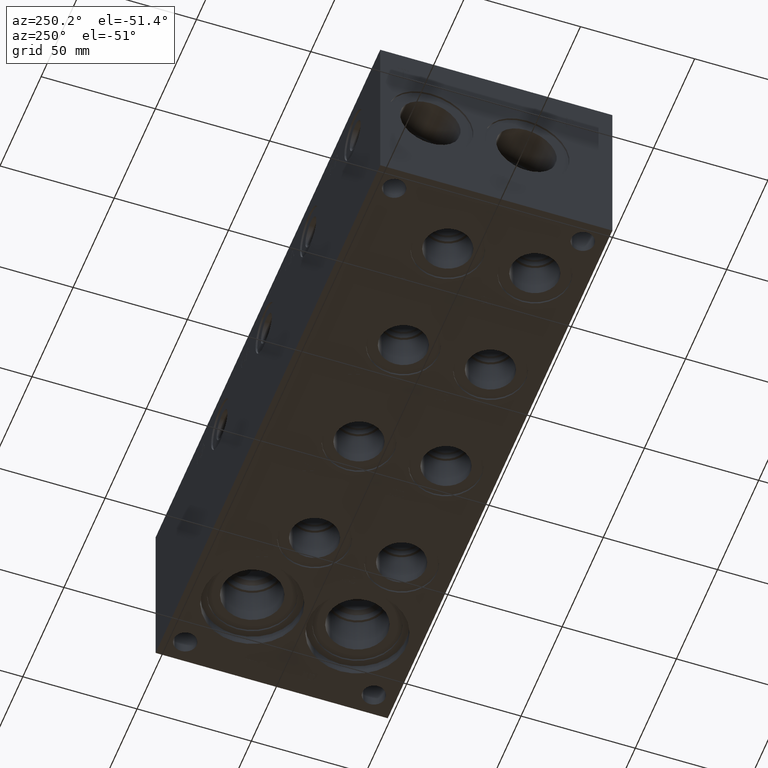
[diagram: clean part render]
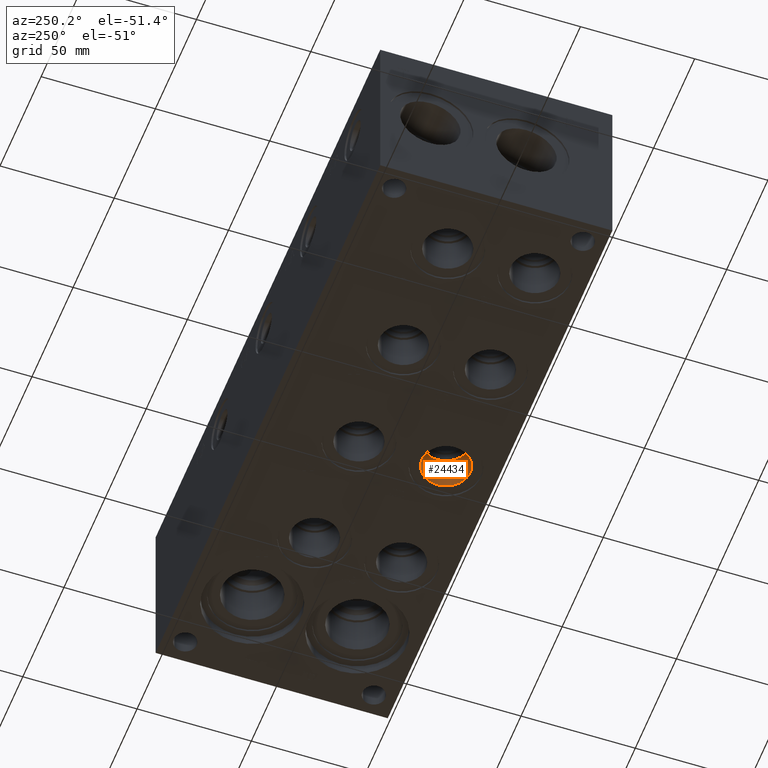
[diagram: same view with one face highlighted and labeled with its STEP entity id]
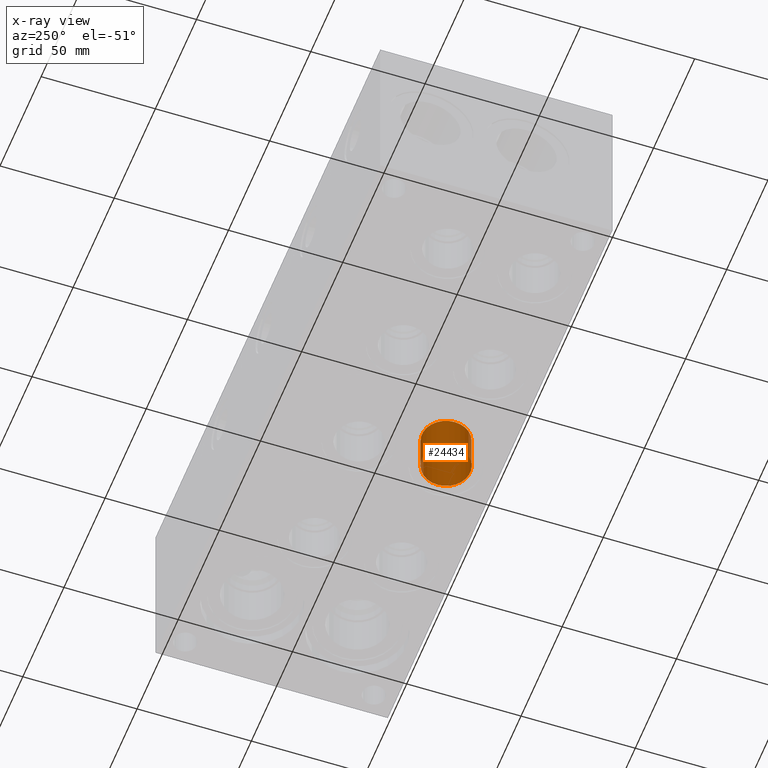
[diagram: x-ray of the same camera — body ghosted, the highlighted face saturated]
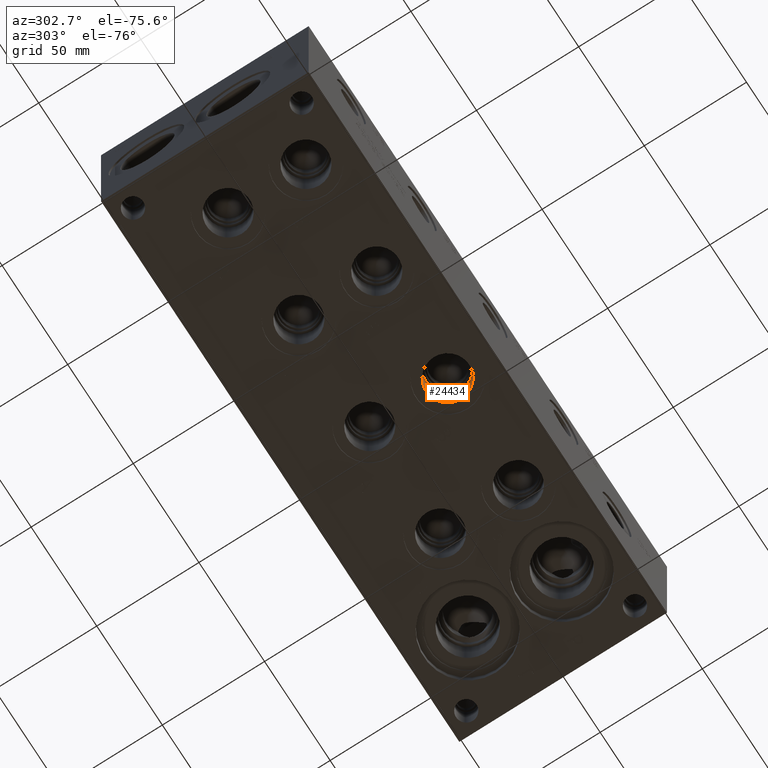
[diagram: same view with one face highlighted and labeled with its STEP entity id]
A machine part, auxiliary view. The second image highlights one B-rep face of the part: STEP entity #24434.
The next image is the same camera in x-ray: the body ghosted, the highlighted face saturated — about 0% of this face is hidden behind the body in this view.
A second angle (auxiliary view) of the same face is appended — the face is thin or edge-on in the first view.
In plain terms, the highlighted cylindrical surface (bore or boss wall) has radius 10.5283 mm, axis along (0, 0, 1).
Its self-contained STEP definition (entity closure, byte-faithful):
#41=CYLINDRICAL_SURFACE('',#25496,10.5283);
#405=CIRCLE('',#25494,10.5283);
#406=CIRCLE('',#25495,10.5283);
#407=CIRCLE('',#25497,10.5283);
#408=CIRCLE('',#25498,10.5283);
#3206=FACE_OUTER_BOUND('',#4612,.T.);
#4612=EDGE_LOOP('',(#20507,#20508,#20509,#20510,#20511,#20512));
#6853=LINE('',#41972,#8949);
#8949=VECTOR('',#29653,10.5283);
#11053=VERTEX_POINT('',#41966);
#11054=VERTEX_POINT('',#41967);
#11055=VERTEX_POINT('',#41971);
#11056=VERTEX_POINT('',#41973);
#14349=EDGE_CURVE('',#11053,#11054,#405,.T.);
#14350=EDGE_CURVE('',#11054,#11053,#406,.T.);
#14351=EDGE_CURVE('',#11054,#11055,#6853,.T.);
#14352=EDGE_CURVE('',#11055,#11056,#407,.T.);
#14353=EDGE_CURVE('',#11056,#11055,#408,.T.);
#20507=ORIENTED_EDGE('',*,*,#14349,.F.);
#20508=ORIENTED_EDGE('',*,*,#14350,.F.);
#20509=ORIENTED_EDGE('',*,*,#14351,.T.);
#20510=ORIENTED_EDGE('',*,*,#14352,.T.);
#20511=ORIENTED_EDGE('',*,*,#14353,.T.);
#20512=ORIENTED_EDGE('',*,*,#14351,.F.);
#24434=ADVANCED_FACE('',(#3206),#41,.F.);
#25494=AXIS2_PLACEMENT_3D('',#41968,#29647,#29648);
#25495=AXIS2_PLACEMENT_3D('',#41969,#29649,#29650);
#25496=AXIS2_PLACEMENT_3D('',#41970,#29651,#29652);
#25497=AXIS2_PLACEMENT_3D('',#41974,#29654,#29655);
#25498=AXIS2_PLACEMENT_3D('',#41975,#29656,#29657);
#29647=DIRECTION('center_axis',(0.,0.,1.));
#29648=DIRECTION('ref_axis',(1.,0.,0.));
#29649=DIRECTION('center_axis',(0.,0.,1.));
#29650=DIRECTION('ref_axis',(1.,0.,0.));
#29651=DIRECTION('center_axis',(0.,0.,1.));
#29652=DIRECTION('ref_axis',(1.,0.,0.));
#29653=DIRECTION('',(0.,0.,1.));
#29654=DIRECTION('center_axis',(0.,0.,1.));
#29655=DIRECTION('ref_axis',(1.,0.,0.));
#29656=DIRECTION('center_axis',(0.,0.,1.));
#29657=DIRECTION('ref_axis',(1.,0.,0.));
#41966=CARTESIAN_POINT('',(151.0157,22.225,0.7874));
#41967=CARTESIAN_POINT('',(129.9591,22.225,0.787400000000001));
#41968=CARTESIAN_POINT('Origin',(140.4874,22.225,0.7874));
#41969=CARTESIAN_POINT('Origin',(140.4874,22.225,0.7874));
#41970=CARTESIAN_POINT('Origin',(140.4874,22.225,9.0805));
#41971=CARTESIAN_POINT('',(129.9591,22.225,17.3736));
#41972=CARTESIAN_POINT('',(129.9591,22.225,9.0805));
#41973=CARTESIAN_POINT('',(151.0157,22.225,17.3736));
#41974=CARTESIAN_POINT('Origin',(140.4874,22.225,17.3736));
#41975=CARTESIAN_POINT('Origin',(140.4874,22.225,17.3736));